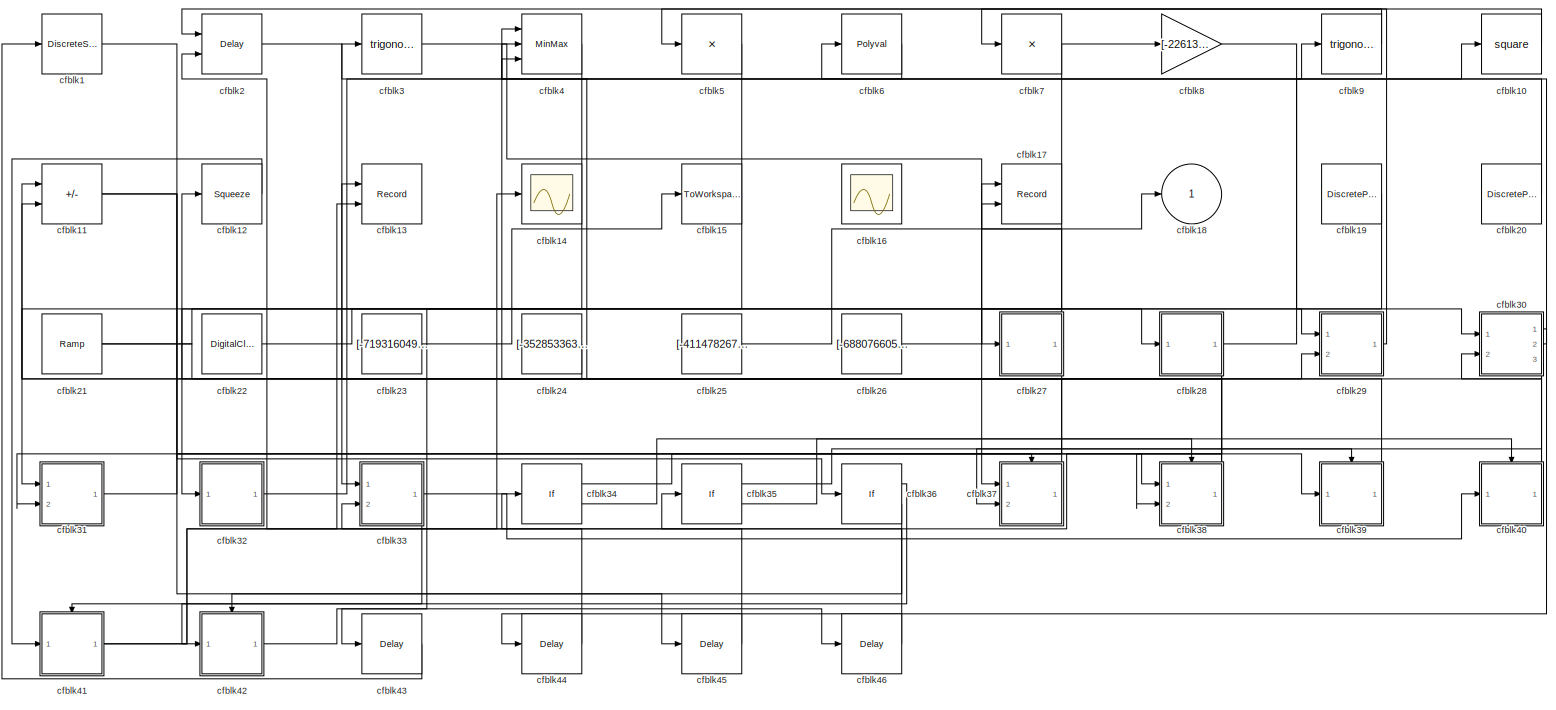
[diagram: root canvas - part 1/1, most of the canvas]
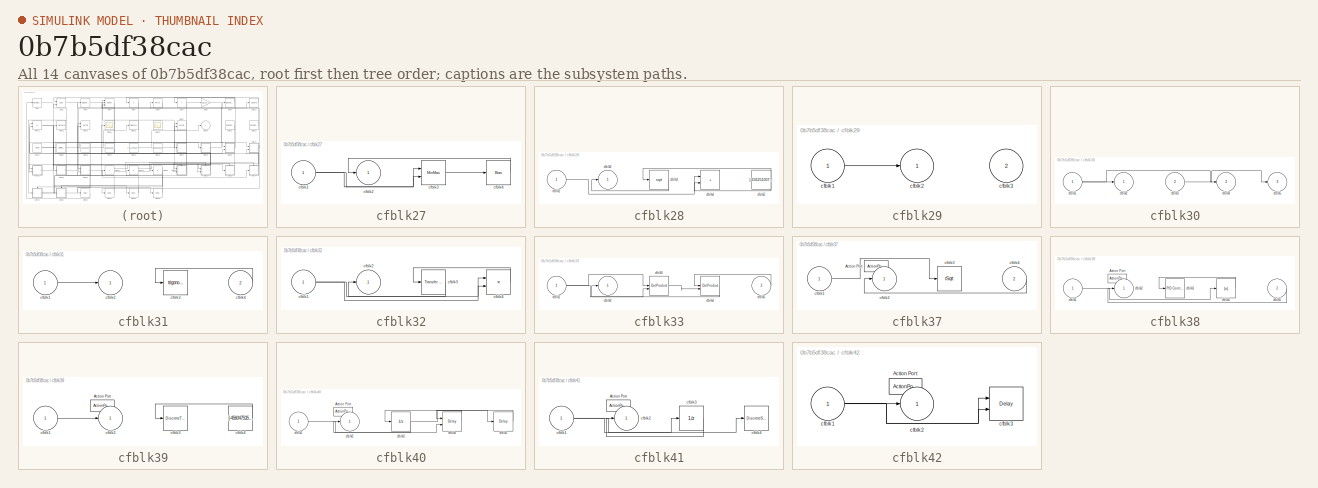
[diagram: thumbnail index - all 14 canvases of the model, root first then tree order]
MODEL slx_0b7b5df38cac
KIND model
CONFIG AbsTol = auto
CONFIG EnableMultiTasking = off
CONFIG FixedStep = auto
CONFIG MaxStep = auto
CONFIG MinStep = auto
CONFIG RelTol = 1e-3
CONFIG SampleTimeConstraint = Unconstrained
CONFIG SolverName = VariableStepAuto
CONFIG StartTime = 0.0
CONFIG StopTime = 10.0
BLOCK [DiscreteStateSpace] cfblk1
BLOCK [Math] cfblk10
  Operator = square
  Ports = [1, 1]
BLOCK [Sum] cfblk11
  IconShape = rectangular
  Inputs = +-
  Ports = [2, 1]
BLOCK [Squeeze] cfblk12
BLOCK [Record] cfblk13
  CompatibilityTag = XY
  FileSettingsInternal = {"entries":[{"content":{"excelSettings":{"content":{},"type":"Streamout.ExcelSettings"}},"type":"Streamout.FileSettingStorage","uuid":"0279d5a8-bec8-47d0-96a9-0591946e5d00"}],"packageUris":["http://schema.mathworks.com/mf0/streamout_blocks/R2020a"],"version":"1.0"}
  Layout = [1 1]
  Ports = [2]
  SignalsInternal = {"entries":[{"content":{"signals":[{"content":{"blockPath":["sampleModel197/cfblk13"],"channel":[],"dimensions":[1],"domain":"sampleModel197/cfblk13","lineColor":"#a2142f","plots":[1],"port":1,"sid":[""],"signalID":7568,"signalName":"cfblk40"},"type":"RecordBlkView.Signal","uuid":"e7f566aa-51c7-4da6-b2fc-9a33eccfc797"},{"content":{"blockPath":["sampleModel197/cfblk13"],"channel":[],"dimensions":[1...<+383ch>
  VisualizationBindings = {"xyplotplugin":{"info":[{"series":[{"bindingParametersList":[{"parameter":"X-Axis","signalID":7568,"signalName":"cfblk40"},{"parameter":"Y-Axis","signalID":7572,"signalName":"cfblk41"}],"seriesID":61193}],"subplotID":1}]}}
BLOCK [Scope] cfblk14
  Floating = off
  NumInputPorts = 1
  Ports = [1]
BLOCK [ToWorkspace] cfblk15
  FixptAsFi = on
  MaxDataPoints = inf
  Ports = [1]
  SampleTime = -1
  SaveFormat = Timeseries
  VariableName = bulrqsj
BLOCK [Scope] cfblk16
  Floating = on
  NumInputPorts = 1
  Ports = []
BLOCK [Record] cfblk17
  CompatibilityTag = XY
  FileSettingsInternal = {"entries":[{"content":{"excelSettings":{"content":{},"type":"Streamout.ExcelSettings"}},"type":"Streamout.FileSettingStorage","uuid":"e6ae8cde-df67-4d7c-a82d-89148d2c1f8a"}],"packageUris":["http://schema.mathworks.com/mf0/streamout_blocks/R2020a"],"version":"1.0"}
  Layout = [1 1]
  Ports = [2]
  SignalsInternal = {"entries":[{"content":{"signals":[{"content":{"blockPath":["sampleModel197/cfblk17"],"channel":[],"dimensions":[1],"domain":"sampleModel197/cfblk17","lineColor":"#a2142f","plots":[1],"port":1,"sid":[""],"signalID":7576,"signalName":"cfblk27"},"type":"RecordBlkView.Signal","uuid":"cf26e29d-c82c-4e0b-80be-766500b7eef1"},{"content":{"blockPath":["sampleModel197/cfblk17"],"channel":[],"dimensions":[1...<+383ch>
  VisualizationBindings = {"xyplotplugin":{"info":[{"series":[{"bindingParametersList":[{"parameter":"X-Axis","signalID":7576,"signalName":"cfblk27"},{"parameter":"Y-Axis","signalID":7580,"signalName":"cfblk26"}],"seriesID":48152}],"subplotID":1}]}}
BLOCK [Outport] cfblk18
BLOCK [DiscretePulseGenerator] cfblk19
  Amplitude = [213944158.153628]
  Period = [64533026.569931]
  PhaseDelay = [3.000000]
  Ports = [0, 1]
  PulseType = Time based
  PulseWidth = 5
BLOCK [Delay] cfblk2
  InputPortMap = u0,e6
  Ports = [2, 1]
  SampleTime = 1
  ShowEnablePort = on
BLOCK [DiscretePulseGenerator] cfblk20
  Amplitude = [999071178.653989]
  Period = [57734423.716283]
  PhaseDelay = [7.000000]
  Ports = [0, 1]
  PulseType = Time based
  PulseWidth = 5
BLOCK [Reference] cfblk21  REF=simulink/Sources/Ramp
  Ports = [0, 1]
  SourceBlock = simulink/Sources/Ramp
  SourceProductBaseCode = SL
  SourceType = Ramp
BLOCK [DigitalClock] cfblk22
BLOCK [Constant] cfblk23
  SampleTime = 1
  Value = [-719316049.161351]
BLOCK [Constant] cfblk24
  SampleTime = 1
  Value = [-352853363.949824]
BLOCK [Constant] cfblk25
  SampleTime = 1
  Value = [-411478267.734264]
BLOCK [Constant] cfblk26
  SampleTime = 1
  Value = [-688076605.564370]
BLOCK [SubSystem] cfblk27
  Ports = [1, 1]
  RequestExecContextInheritance = off
BLOCK [Inport] cfblk27/cfblk1
BLOCK [Outport] cfblk27/cfblk2
BLOCK [MinMax] cfblk27/cfblk3
  Function = max
  Inputs = 2
  Ports = [2, 1]
BLOCK [Bias] cfblk27/cfblk4
  Bias = [102492239.620958]
  SaturateOnIntegerOverflow = off
BLOCK [SubSystem] cfblk28
  Ports = [1, 1]
  RequestExecContextInheritance = off
BLOCK [Inport] cfblk28/cfblk1
BLOCK [Outport] cfblk28/cfblk2
BLOCK [Sqrt] cfblk28/cfblk3
BLOCK [Sum] cfblk28/cfblk4
  IconShape = rectangular
  Ports = [2, 1]
BLOCK [Constant] cfblk28/cfblk5
  SampleTime = 1
  Value = [-256251007.766806]
BLOCK [SubSystem] cfblk29
  Ports = [2, 1]
  RequestExecContextInheritance = off
BLOCK [Inport] cfblk29/cfblk1
BLOCK [Outport] cfblk29/cfblk2
BLOCK [Inport] cfblk29/cfblk3
  Port = 2
BLOCK [Trigonometry] cfblk3
  Ports = [1, 1]
BLOCK [SubSystem] cfblk30
  Ports = [2, 3]
  RequestExecContextInheritance = off
BLOCK [Inport] cfblk30/cfblk1
BLOCK [Outport] cfblk30/cfblk2
BLOCK [Inport] cfblk30/cfblk3
  Port = 2
BLOCK [Outport] cfblk30/cfblk4
  Port = 2
BLOCK [Outport] cfblk30/cfblk5
  Port = 3
BLOCK [SubSystem] cfblk31
  Ports = [2, 1]
  RequestExecContextInheritance = off
BLOCK [Inport] cfblk31/cfblk1
BLOCK [Outport] cfblk31/cfblk2
BLOCK [Trigonometry] cfblk31/cfblk3
  Ports = [1, 1]
BLOCK [Inport] cfblk31/cfblk4
  Port = 2
BLOCK [SubSystem] cfblk32
  Ports = [1, 1]
  RequestExecContextInheritance = off
BLOCK [Inport] cfblk32/cfblk1
BLOCK [Outport] cfblk32/cfblk2
BLOCK [Reference] cfblk32/cfblk3  REF=simulink/Discrete/Transfer Fcn
Real Zero
  Ports = [1, 1]
  SourceBlock = simulink/Discrete/Transfer Fcn\nReal Zero
  SourceProductBaseCode = SL
  SourceType = Transfer Fcn Real Zero
BLOCK [Product] cfblk32/cfblk4
  Inputs = **
  Ports = [2, 1]
BLOCK [SubSystem] cfblk33
  Ports = [2, 1]
  RequestExecContextInheritance = off
BLOCK [Inport] cfblk33/cfblk1
BLOCK [Outport] cfblk33/cfblk2
BLOCK [DotProduct] cfblk33/cfblk3
  OutDataTypeStr = Inherit: Inherit via internal rule
BLOCK [DotProduct] cfblk33/cfblk4
  OutDataTypeStr = Inherit: Inherit via internal rule
BLOCK [Inport] cfblk33/cfblk5
  Port = 2
BLOCK [If] cfblk34
  IfExpression = u1 >= 0
  Ports = [1, 2]
  SampleTime = 1
BLOCK [If] cfblk35
  IfExpression = u1 >= 0
  Ports = [1, 2]
  SampleTime = 1
BLOCK [If] cfblk36
  IfExpression = u1 >= 0
  Ports = [1, 2]
  SampleTime = 1
BLOCK [SubSystem] cfblk37
  Ports = [2, 1, 0, 0, 0, 0, 0, 1]
  RequestExecContextInheritance = off
  TreatAsAtomicUnit = on
BLOCK [ActionPort] cfblk37/Action Port
  ActionPortLabel = if(u1 >= 0)
BLOCK [Inport] cfblk37/cfblk1
BLOCK [Outport] cfblk37/cfblk2
BLOCK [Sqrt] cfblk37/cfblk3
  AlgorithmType = Newton-Raphson
  Operator = rSqrt
BLOCK [Inport] cfblk37/cfblk4
  Port = 2
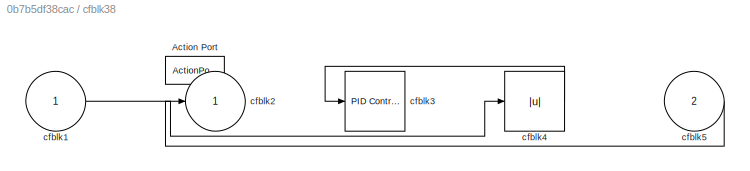
BLOCK [SubSystem] cfblk38
  Ports = [2, 1, 0, 0, 0, 0, 0, 1]
  RequestExecContextInheritance = off
  TreatAsAtomicUnit = on
BLOCK [ActionPort] cfblk38/Action Port
  ActionPortLabel = else
BLOCK [Inport] cfblk38/cfblk1
BLOCK [Outport] cfblk38/cfblk2
BLOCK [Reference] cfblk38/cfblk3  REF=slpidlib/PID Controller
  Ports = [1, 1]
  SourceBlock = slpidlib/PID Controller
  SourceProductBaseCode = SL
  SourceType = PID 1dof
BLOCK [Abs] cfblk38/cfblk4
  SaturateOnIntegerOverflow = off
BLOCK [Inport] cfblk38/cfblk5
  Port = 2
BLOCK [SubSystem] cfblk39
  Ports = [1, 1, 0, 0, 0, 0, 0, 1]
  RequestExecContextInheritance = off
  TreatAsAtomicUnit = on
BLOCK [ActionPort] cfblk39/Action Port
  ActionPortLabel = if(u1 >= 0)
BLOCK [Inport] cfblk39/cfblk1
BLOCK [Outport] cfblk39/cfblk2
BLOCK [DiscreteTransferFcn] cfblk39/cfblk3
  InputPortMap = u0
  Ports = [1, 1]
BLOCK [Constant] cfblk39/cfblk4
  SampleTime = 1
  Value = [-456047535.820456]
BLOCK [MinMax] cfblk4
  Function = max
  Inputs = 3
  Ports = [3, 1]
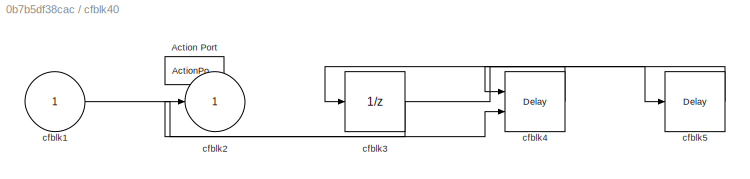
BLOCK [SubSystem] cfblk40
  Ports = [1, 1, 0, 0, 0, 0, 0, 1]
  RequestExecContextInheritance = off
  TreatAsAtomicUnit = on
BLOCK [ActionPort] cfblk40/Action Port
  ActionPortLabel = else
BLOCK [Inport] cfblk40/cfblk1
BLOCK [Outport] cfblk40/cfblk2
BLOCK [UnitDelay] cfblk40/cfblk3
  HasFrameUpgradeWarning = on
  SampleTime = -1
BLOCK [Delay] cfblk40/cfblk4
  InputPortMap = u0,e6
  Ports = [2, 1]
  ShowEnablePort = on
BLOCK [Delay] cfblk40/cfblk5
  InputPortMap = u0
  Ports = [1, 1]
BLOCK [SubSystem] cfblk41
  Ports = [1, 1, 0, 0, 0, 0, 0, 1]
  RequestExecContextInheritance = off
  TreatAsAtomicUnit = on
BLOCK [ActionPort] cfblk41/Action Port
  ActionPortLabel = if(u1 >= 0)
BLOCK [Inport] cfblk41/cfblk1
BLOCK [Outport] cfblk41/cfblk2
BLOCK [UnitDelay] cfblk41/cfblk3
  HasFrameUpgradeWarning = on
  SampleTime = -1
BLOCK [DiscreteStateSpace] cfblk41/cfblk4
  SampleTime = -1
BLOCK [SubSystem] cfblk42
  Ports = [1, 1, 0, 0, 0, 0, 0, 1]
  RequestExecContextInheritance = off
  TreatAsAtomicUnit = on
BLOCK [ActionPort] cfblk42/Action Port
  ActionPortLabel = else
BLOCK [Inport] cfblk42/cfblk1
BLOCK [Outport] cfblk42/cfblk2
BLOCK [Delay] cfblk42/cfblk3
  InputPortMap = u0,e6
  Ports = [2, 1]
  ShowEnablePort = on
BLOCK [Delay] cfblk43
  InputPortMap = u0
  Ports = [1, 1]
  SampleTime = 1
BLOCK [Delay] cfblk44
  InputPortMap = u0
  Ports = [1, 1]
  SampleTime = 1
BLOCK [Delay] cfblk45
  InputPortMap = u0
  Ports = [1, 1]
  SampleTime = 1
BLOCK [Delay] cfblk46
  InputPortMap = u0
  Ports = [1, 1]
  SampleTime = 1
BLOCK [Product] cfblk5
  Inputs = *
  Ports = [1, 1]
BLOCK [Polyval] cfblk6
  Coefs = [ +2.081618890e-019, -1.441693666e-014, +4.719686976e-010, -8.536869453e-006, +1.621573104e-001, -8.087801117e+001 ]
BLOCK [Product] cfblk7
  Inputs = *
  Ports = [1, 1]
BLOCK [Gain] cfblk8
  Gain = [-226134050.627010]
BLOCK [Trigonometry] cfblk9
  Ports = [1, 1]
LINE cfblk10:1 -> cfblk7:1
NET cfblk11:1 -> cfblk36:1, cfblk45:1
LINE cfblk12:1 -> cfblk41:1
LINE cfblk19:1 -> cfblk27:1
LINE cfblk1:1 -> cfblk39:1
LINE cfblk20:1 -> cfblk3:1
NET cfblk21:1 -> cfblk29:1, cfblk29:2
LINE cfblk22:1 -> cfblk28:1
LINE cfblk23:1 -> cfblk15:1
LINE cfblk24:1 -> cfblk11:1
LINE cfblk25:1 -> cfblk18:1
LINE cfblk26:1 -> cfblk17:2
NET cfblk27/cfblk1:1 -> cfblk27/cfblk3:1, cfblk27/cfblk3:2
LINE cfblk27/cfblk3:1 -> cfblk27/cfblk4:1
LINE cfblk27/cfblk4:1 -> cfblk27/cfblk2:1
NET cfblk27:1 -> cfblk17:1, cfblk31:2
LINE cfblk28/cfblk1:1 -> cfblk28/cfblk4:1
LINE cfblk28/cfblk3:1 -> cfblk28/cfblk2:1
NET cfblk28/cfblk5:1 -> cfblk28/cfblk3:1, cfblk28/cfblk4:2
NET cfblk28:1 -> cfblk10:1, cfblk35:1, cfblk38:2
LINE cfblk29/cfblk1:1 -> cfblk29/cfblk2:1
LINE cfblk29:1 -> cfblk5:1
LINE cfblk2:1 -> cfblk33:1
NET cfblk30/cfblk1:1 -> cfblk30/cfblk2:1, cfblk30/cfblk4:1
LINE cfblk30/cfblk3:1 -> cfblk30/cfblk5:1
LINE cfblk30:1 -> cfblk44:1
LINE cfblk30:2 -> cfblk6:1
LINE cfblk30:3 -> cfblk37:2
LINE cfblk31/cfblk1:1 -> cfblk31/cfblk2:1
LINE cfblk31/cfblk4:1 -> cfblk31/cfblk3:1
LINE cfblk31:1 -> cfblk38:1
NET cfblk32/cfblk1:1 -> cfblk32/cfblk4:1, cfblk32/cfblk4:2
LINE cfblk32/cfblk3:1 -> cfblk32/cfblk2:1
LINE cfblk32/cfblk4:1 -> cfblk32/cfblk3:1
LINE cfblk32:1 -> cfblk9:1
NET cfblk33/cfblk1:1 -> cfblk33/cfblk3:1, cfblk33/cfblk3:2
LINE cfblk33/cfblk3:1 -> cfblk33/cfblk4:2
LINE cfblk33/cfblk4:1 -> cfblk33/cfblk2:1
LINE cfblk33/cfblk5:1 -> cfblk33/cfblk4:1
NET cfblk33:1 -> cfblk40:1, cfblk42:1
LINE cfblk34:1 -> cfblk37:ifaction
LINE cfblk34:2 -> cfblk38:ifaction
LINE cfblk35:1 -> cfblk39:ifaction
LINE cfblk35:2 -> cfblk40:ifaction
LINE cfblk36:1 -> cfblk41:ifaction
LINE cfblk36:2 -> cfblk42:ifaction
LINE cfblk37/cfblk1:1 -> cfblk37/cfblk3:1
LINE cfblk37/cfblk4:1 -> cfblk37/cfblk2:1
LINE cfblk37:1 -> cfblk11:2
LINE cfblk38/cfblk1:1 -> cfblk38/cfblk4:1
LINE cfblk38/cfblk4:1 -> cfblk38/cfblk3:1
LINE cfblk38/cfblk5:1 -> cfblk38/cfblk2:1
NET cfblk38:1 -> cfblk12:1, cfblk4:3
LINE cfblk39/cfblk1:1 -> cfblk39/cfblk2:1
LINE cfblk39/cfblk4:1 -> cfblk39/cfblk3:1
LINE cfblk39:1 -> cfblk4:1
LINE cfblk3:1 -> cfblk37:1
LINE cfblk40/cfblk1:1 -> cfblk40/cfblk4:2
NET cfblk40/cfblk3:1 -> cfblk40/cfblk2:1, cfblk40/cfblk5:1
LINE cfblk40/cfblk4:1 -> cfblk40/cfblk3:1
LINE cfblk40/cfblk5:1 -> cfblk40/cfblk4:1
NET cfblk40:1 -> cfblk13:1, cfblk30:2
NET cfblk41/cfblk1:1 -> cfblk41/cfblk3:1, cfblk41/cfblk4:1
LINE cfblk41/cfblk3:1 -> cfblk41/cfblk2:1
NET cfblk41:1 -> cfblk13:2, cfblk14:1
NET cfblk42/cfblk1:1 -> cfblk42/cfblk2:1, cfblk42/cfblk3:1, cfblk42/cfblk3:2
LINE cfblk42:1 -> cfblk46:1
LINE cfblk43:1 -> cfblk1:1
LINE cfblk44:1 -> cfblk2:2
LINE cfblk45:1 -> cfblk34:1
LINE cfblk46:1 -> cfblk33:2
LINE cfblk4:1 -> cfblk43:1
LINE cfblk5:1 -> cfblk32:1
LINE cfblk6:1 -> cfblk4:2
NET cfblk7:1 -> cfblk31:1, cfblk8:1
LINE cfblk8:1 -> cfblk30:1
LINE cfblk9:1 -> cfblk2:1
note: NET lines group one-source signal fan-out (src -> all destinations, sorted); 1:1 wires keep LINE
